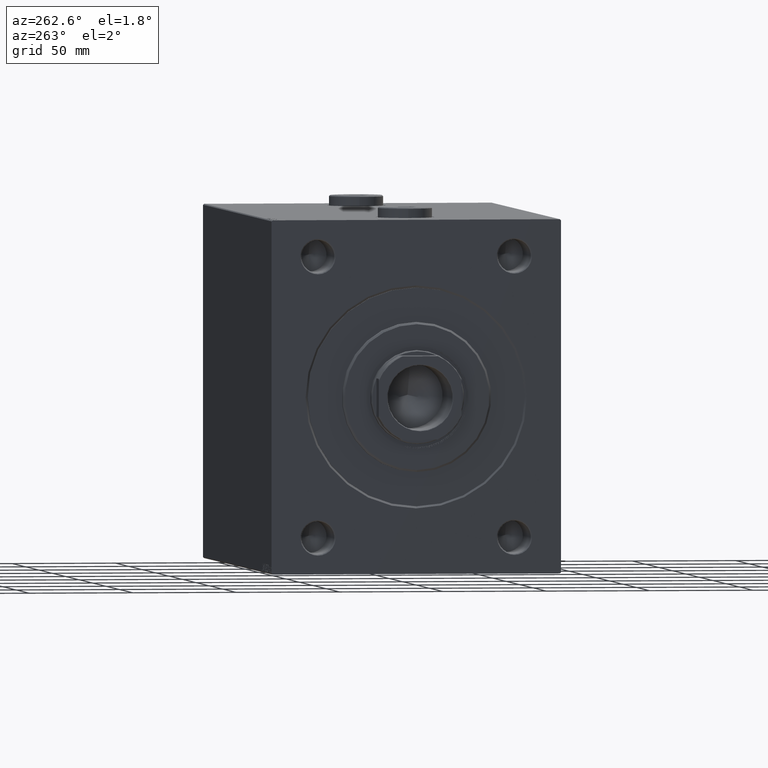
[diagram: clean part render]
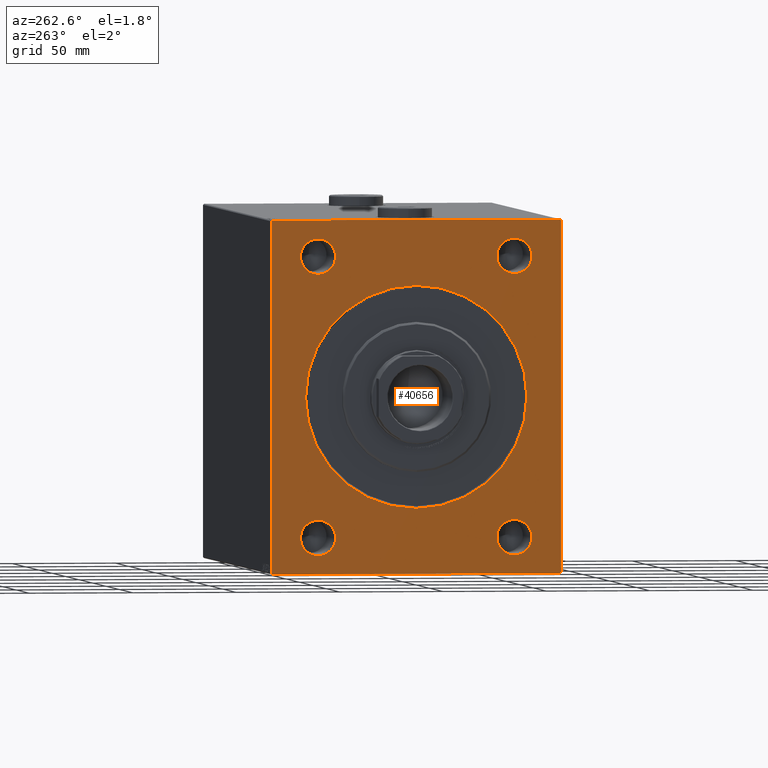
[diagram: same view with one face highlighted and labeled with its STEP entity id]
A machine part, auxiliary view. The second image highlights one B-rep face of the part: STEP entity #40656.
In plain terms, the highlighted planar face has unit normal (1, 0, 0).
Its self-contained STEP definition (entity closure, byte-faithful):
#99 = CARTESIAN_POINT ( 'NONE',  ( 0.000000000000000000, 70.00000000000001421, -85.00000000000000000 ) ) ;
#739 = VECTOR ( 'NONE', #6511, 1000.000000000000000 ) ;
#950 = VERTEX_POINT ( 'NONE', #18345 ) ;
#1317 = DIRECTION ( 'NONE',  ( 1.000000000000000000, 0.000000000000000000, 0.000000000000000000 ) ) ;
#1331 = ORIENTED_EDGE ( 'NONE', *, *, #29895, .T. ) ;
#1514 = LINE ( 'NONE', #37708, #42964 ) ;
#1765 = DIRECTION ( 'NONE',  ( 1.000000000000000000, 0.000000000000000000, 0.000000000000000000 ) ) ;
#2150 = CIRCLE ( 'NONE', #25760, 8.500000000000007105 ) ;
#2181 = CARTESIAN_POINT ( 'NONE',  ( 0.000000000000000000, 47.50000000000000000, 67.49999999999998579 ) ) ;
#2832 = CARTESIAN_POINT ( 'NONE',  ( 0.000000000000000000, -70.00000000000000000, 84.99999999999998579 ) ) ;
#2998 = EDGE_CURVE ( 'NONE', #25461, #5146, #27032, .T. ) ;
#3083 = CARTESIAN_POINT ( 'NONE',  ( 0.000000000000000000, 47.50000000000000000, -67.50000000000001421 ) ) ;
#3112 = ORIENTED_EDGE ( 'NONE', *, *, #18599, .T. ) ;
#3415 = ORIENTED_EDGE ( 'NONE', *, *, #30629, .F. ) ;
#3528 = VERTEX_POINT ( 'NONE', #32573 ) ;
#3539 = CIRCLE ( 'NONE', #29348, 8.500000000000007105 ) ;
#3544 = DIRECTION ( 'NONE',  ( 1.000000000000000000, 0.000000000000000000, 0.000000000000000000 ) ) ;
#4174 = DIRECTION ( 'NONE',  ( 1.000000000000000000, 0.000000000000000000, 0.000000000000000000 ) ) ;
#4617 = DIRECTION ( 'NONE',  ( 0.000000000000000000, 0.000000000000000000, -1.000000000000000000 ) ) ;
#4803 = VECTOR ( 'NONE', #45578, 1000.000000000000000 ) ;
#5146 = VERTEX_POINT ( 'NONE', #34944 ) ;
#5897 = VERTEX_POINT ( 'NONE', #36392 ) ;
#6064 = DIRECTION ( 'NONE',  ( -0.000000000000000000, 0.7071067811865672237, 0.7071067811865279218 ) ) ;
#6511 = DIRECTION ( 'NONE',  ( -0.000000000000000000, 0.7071067811865378028, -0.7071067811865573427 ) ) ;
#6639 = VERTEX_POINT ( 'NONE', #35073 ) ;
#6709 = CIRCLE ( 'NONE', #10387, 8.500000000000007105 ) ;
#7021 = DIRECTION ( 'NONE',  ( 0.000000000000000000, 0.000000000000000000, -1.000000000000000000 ) ) ;
#7188 = FACE_OUTER_BOUND ( 'NONE', #38167, .T. ) ;
#7271 = ORIENTED_EDGE ( 'NONE', *, *, #2998, .T. ) ;
#7397 = EDGE_CURVE ( 'NONE', #25738, #25922, #15706, .T. ) ;
#8823 = AXIS2_PLACEMENT_3D ( 'NONE', #3083, #45144, #7021 ) ;
#9079 = ORIENTED_EDGE ( 'NONE', *, *, #18804, .F. ) ;
#9234 = VECTOR ( 'NONE', #13516, 1000.000000000000000 ) ;
#9499 = DIRECTION ( 'NONE',  ( 0.000000000000000000, 0.000000000000000000, -1.000000000000000000 ) ) ;
#9683 = VERTEX_POINT ( 'NONE', #27426 ) ;
#10320 = DIRECTION ( 'NONE',  ( 1.000000000000000000, 0.000000000000000000, 0.000000000000000000 ) ) ;
#10387 = AXIS2_PLACEMENT_3D ( 'NONE', #2181, #41203, #44687 ) ;
#10404 = PLANE ( 'NONE',  #38257 ) ;
#10623 = CARTESIAN_POINT ( 'NONE',  ( 0.000000000000000000, -47.50000000000000000, -76.00000000000002842 ) ) ;
#10626 = CARTESIAN_POINT ( 'NONE',  ( 0.000000000000000000, 0.000000000000000000, 0.000000000000000000 ) ) ;
#10856 = FACE_BOUND ( 'NONE', #20125, .T. ) ;
#11439 = VECTOR ( 'NONE', #31177, 1000.000000000000114 ) ;
#11834 = ORIENTED_EDGE ( 'NONE', *, *, #33150, .F. ) ;
#11886 = DIRECTION ( 'NONE',  ( 0.000000000000000000, 0.000000000000000000, -1.000000000000000000 ) ) ;
#12529 = EDGE_LOOP ( 'NONE', ( #12882, #29874 ) ) ;
#12882 = ORIENTED_EDGE ( 'NONE', *, *, #32372, .T. ) ;
#13053 = EDGE_CURVE ( 'NONE', #32763, #28189, #20608, .T. ) ;
#13430 = CARTESIAN_POINT ( 'NONE',  ( 0.000000000000000000, 69.49999999999997158, 85.00000000000001421 ) ) ;
#13516 = DIRECTION ( 'NONE',  ( 0.000000000000000000, -1.000000000000000000, -1.982541115402065110E-16 ) ) ;
#13959 = LINE ( 'NONE', #99, #14851 ) ;
#14153 = ORIENTED_EDGE ( 'NONE', *, *, #30836, .T. ) ;
#14349 = EDGE_CURVE ( 'NONE', #3528, #27269, #30984, .T. ) ;
#14658 = VECTOR ( 'NONE', #15032, 999.9999999999998863 ) ;
#14785 = EDGE_LOOP ( 'NONE', ( #17072, #7271 ) ) ;
#14851 = VECTOR ( 'NONE', #17650, 1000.000000000000000 ) ;
#15032 = DIRECTION ( 'NONE',  ( 0.000000000000000000, -0.7071067811865376918, -0.7071067811865574537 ) ) ;
#15139 = CIRCLE ( 'NONE', #35811, 8.500000000000007105 ) ;
#15165 = CARTESIAN_POINT ( 'NONE',  ( 0.000000000000000000, 47.50000000000000000, 58.99999999999998579 ) ) ;
#15640 = CARTESIAN_POINT ( 'NONE',  ( 0.000000000000000000, -47.50000000000000000, -67.50000000000001421 ) ) ;
#15706 = LINE ( 'NONE', #36055, #14658 ) ;
#15707 = VERTEX_POINT ( 'NONE', #28984 ) ;
#15974 = CARTESIAN_POINT ( 'NONE',  ( 0.000000000000000000, -70.00000000000000000, -85.00000000000000000 ) ) ;
#16552 = EDGE_CURVE ( 'NONE', #5146, #25461, #6709, .T. ) ;
#16861 = ORIENTED_EDGE ( 'NONE', *, *, #13053, .T. ) ;
#17072 = ORIENTED_EDGE ( 'NONE', *, *, #16552, .T. ) ;
#17091 = CARTESIAN_POINT ( 'NONE',  ( 0.000000000000000000, -69.49999999999995737, -85.00000000000000000 ) ) ;
#17650 = DIRECTION ( 'NONE',  ( 0.000000000000000000, -8.163404592832031500E-17, 1.000000000000000000 ) ) ;
#18345 = CARTESIAN_POINT ( 'NONE',  ( 0.000000000000000000, 0.000000000000000000, 53.50000000000002842 ) ) ;
#18599 = EDGE_CURVE ( 'NONE', #15707, #5897, #20016, .T. ) ;
#18804 = EDGE_CURVE ( 'NONE', #25738, #27269, #13959, .T. ) ;
#18841 = ORIENTED_EDGE ( 'NONE', *, *, #14349, .T. ) ;
#19673 = CARTESIAN_POINT ( 'NONE',  ( 0.000000000000000000, 0.000000000000000000, 0.000000000000000000 ) ) ;
#19823 = AXIS2_PLACEMENT_3D ( 'NONE', #25235, #3544, #39332 ) ;
#20016 = CIRCLE ( 'NONE', #45100, 8.500000000000007105 ) ;
#20125 = EDGE_LOOP ( 'NONE', ( #26844, #16861 ) ) ;
#20546 = LINE ( 'NONE', #17091, #11439 ) ;
#20608 = CIRCLE ( 'NONE', #8823, 8.500000000000007105 ) ;
#21101 = VECTOR ( 'NONE', #37694, 1000.000000000000000 ) ;
#21148 = AXIS2_PLACEMENT_3D ( 'NONE', #30348, #26652, #11886 ) ;
#21452 = EDGE_CURVE ( 'NONE', #6639, #29971, #1514, .T. ) ;
#21491 = FACE_BOUND ( 'NONE', #33602, .T. ) ;
#22552 = AXIS2_PLACEMENT_3D ( 'NONE', #19673, #41147, #9499 ) ;
#23504 = CIRCLE ( 'NONE', #19823, 8.500000000000007105 ) ;
#23954 = CARTESIAN_POINT ( 'NONE',  ( 0.000000000000000000, 70.00000000000000000, 84.49999999999997158 ) ) ;
#24532 = LINE ( 'NONE', #2832, #4803 ) ;
#24978 = CARTESIAN_POINT ( 'NONE',  ( 0.000000000000000000, 69.50000000000005684, -85.00000000000000000 ) ) ;
#25235 = CARTESIAN_POINT ( 'NONE',  ( 0.000000000000000000, 47.50000000000000000, -67.50000000000001421 ) ) ;
#25317 = ORIENTED_EDGE ( 'NONE', *, *, #33116, .T. ) ;
#25436 = CARTESIAN_POINT ( 'NONE',  ( 0.000000000000000000, -47.50000000000000000, -59.00000000000001421 ) ) ;
#25461 = VERTEX_POINT ( 'NONE', #15165 ) ;
#25738 = VERTEX_POINT ( 'NONE', #45181 ) ;
#25760 = AXIS2_PLACEMENT_3D ( 'NONE', #31489, #41661, #38431 ) ;
#25922 = VERTEX_POINT ( 'NONE', #24978 ) ;
#26064 = CARTESIAN_POINT ( 'NONE',  ( 0.000000000000000000, 0.000000000000000000, 0.000000000000000000 ) ) ;
#26430 = ORIENTED_EDGE ( 'NONE', *, *, #38429, .T. ) ;
#26652 = DIRECTION ( 'NONE',  ( 1.000000000000000000, 0.000000000000000000, 0.000000000000000000 ) ) ;
#26844 = ORIENTED_EDGE ( 'NONE', *, *, #40297, .T. ) ;
#27032 = CIRCLE ( 'NONE', #21148, 8.500000000000007105 ) ;
#27269 = VERTEX_POINT ( 'NONE', #23954 ) ;
#27426 = CARTESIAN_POINT ( 'NONE',  ( 0.000000000000000000, 6.551860375438343048E-15, -53.50000000000002842 ) ) ;
#27548 = EDGE_CURVE ( 'NONE', #3528, #29971, #45188, .T. ) ;
#27839 = VERTEX_POINT ( 'NONE', #41591 ) ;
#28189 = VERTEX_POINT ( 'NONE', #39904 ) ;
#28642 = FACE_BOUND ( 'NONE', #31188, .T. ) ;
#28816 = DIRECTION ( 'NONE',  ( 0.000000000000000000, 0.000000000000000000, -1.000000000000000000 ) ) ;
#28984 = CARTESIAN_POINT ( 'NONE',  ( 0.000000000000000000, -47.50000000000000000, 76.00000000000000000 ) ) ;
#29179 = CARTESIAN_POINT ( 'NONE',  ( 0.000000000000000000, -69.49999999999995737, -85.00000000000000000 ) ) ;
#29348 = AXIS2_PLACEMENT_3D ( 'NONE', #33412, #1765, #44051 ) ;
#29874 = ORIENTED_EDGE ( 'NONE', *, *, #41298, .T. ) ;
#29895 = EDGE_CURVE ( 'NONE', #950, #9683, #32780, .T. ) ;
#29941 = CIRCLE ( 'NONE', #22552, 53.50000000000002842 ) ;
#29971 = VERTEX_POINT ( 'NONE', #34583 ) ;
#30348 = CARTESIAN_POINT ( 'NONE',  ( 0.000000000000000000, 47.50000000000000000, 67.49999999999998579 ) ) ;
#30558 = AXIS2_PLACEMENT_3D ( 'NONE', #26064, #33233, #4617 ) ;
#30629 = EDGE_CURVE ( 'NONE', #6639, #27839, #24532, .T. ) ;
#30836 = EDGE_CURVE ( 'NONE', #35729, #27839, #20546, .T. ) ;
#30984 = LINE ( 'NONE', #13430, #739 ) ;
#31177 = DIRECTION ( 'NONE',  ( -0.000000000000000000, -0.7071067811865376918, 0.7071067811865573427 ) ) ;
#31188 = EDGE_LOOP ( 'NONE', ( #3112, #26430 ) ) ;
#31489 = CARTESIAN_POINT ( 'NONE',  ( 0.000000000000000000, -47.50000000000000000, -67.50000000000001421 ) ) ;
#31662 = FACE_BOUND ( 'NONE', #12529, .T. ) ;
#31805 = DIRECTION ( 'NONE',  ( 0.000000000000000000, 0.000000000000000000, -1.000000000000000000 ) ) ;
#31948 = ORIENTED_EDGE ( 'NONE', *, *, #27548, .F. ) ;
#32372 = EDGE_CURVE ( 'NONE', #36915, #38776, #15139, .T. ) ;
#32573 = CARTESIAN_POINT ( 'NONE',  ( 0.000000000000000000, 69.49999999999997158, 85.00000000000001421 ) ) ;
#32763 = VERTEX_POINT ( 'NONE', #33816 ) ;
#32780 = CIRCLE ( 'NONE', #30558, 53.50000000000002842 ) ;
#33116 = EDGE_CURVE ( 'NONE', #9683, #950, #29941, .T. ) ;
#33150 = EDGE_CURVE ( 'NONE', #35729, #25922, #37017, .T. ) ;
#33233 = DIRECTION ( 'NONE',  ( 1.000000000000000000, 0.000000000000000000, 0.000000000000000000 ) ) ;
#33412 = CARTESIAN_POINT ( 'NONE',  ( 0.000000000000000000, -47.50000000000000000, 67.49999999999998579 ) ) ;
#33602 = EDGE_LOOP ( 'NONE', ( #1331, #25317 ) ) ;
#33816 = CARTESIAN_POINT ( 'NONE',  ( 0.000000000000000000, 47.50000000000000000, -76.00000000000002842 ) ) ;
#34191 = ORIENTED_EDGE ( 'NONE', *, *, #7397, .T. ) ;
#34583 = CARTESIAN_POINT ( 'NONE',  ( 0.000000000000000000, -69.49999999999997158, 84.99999999999998579 ) ) ;
#34944 = CARTESIAN_POINT ( 'NONE',  ( 0.000000000000000000, 47.50000000000000000, 76.00000000000000000 ) ) ;
#35033 = CARTESIAN_POINT ( 'NONE',  ( 0.000000000000000000, -47.50000000000000000, 67.49999999999998579 ) ) ;
#35073 = CARTESIAN_POINT ( 'NONE',  ( 0.000000000000000000, -70.00000000000000000, 84.49999999999998579 ) ) ;
#35729 = VERTEX_POINT ( 'NONE', #29179 ) ;
#35811 = AXIS2_PLACEMENT_3D ( 'NONE', #15640, #1317, #28816 ) ;
#36055 = CARTESIAN_POINT ( 'NONE',  ( 0.000000000000000000, 70.00000000000001421, -84.50000000000002842 ) ) ;
#36392 = CARTESIAN_POINT ( 'NONE',  ( 0.000000000000000000, -47.50000000000000000, 58.99999999999998579 ) ) ;
#36915 = VERTEX_POINT ( 'NONE', #25436 ) ;
#37017 = LINE ( 'NONE', #15974, #21101 ) ;
#37694 = DIRECTION ( 'NONE',  ( 0.000000000000000000, 1.000000000000000000, 0.000000000000000000 ) ) ;
#37708 = CARTESIAN_POINT ( 'NONE',  ( 0.000000000000000000, -70.00000000000000000, 84.49999999999998579 ) ) ;
#38167 = EDGE_LOOP ( 'NONE', ( #3415, #39863, #31948, #18841, #9079, #34191, #11834, #14153 ) ) ;
#38257 = AXIS2_PLACEMENT_3D ( 'NONE', #10626, #4174, #39053 ) ;
#38429 = EDGE_CURVE ( 'NONE', #5897, #15707, #3539, .T. ) ;
#38431 = DIRECTION ( 'NONE',  ( 0.000000000000000000, 0.000000000000000000, -1.000000000000000000 ) ) ;
#38776 = VERTEX_POINT ( 'NONE', #10623 ) ;
#39053 = DIRECTION ( 'NONE',  ( 0.000000000000000000, 0.000000000000000000, -1.000000000000000000 ) ) ;
#39332 = DIRECTION ( 'NONE',  ( 0.000000000000000000, 0.000000000000000000, -1.000000000000000000 ) ) ;
#39863 = ORIENTED_EDGE ( 'NONE', *, *, #21452, .T. ) ;
#39904 = CARTESIAN_POINT ( 'NONE',  ( 0.000000000000000000, 47.50000000000000000, -59.00000000000001421 ) ) ;
#40297 = EDGE_CURVE ( 'NONE', #28189, #32763, #23504, .T. ) ;
#40656 = ADVANCED_FACE ( 'NONE', ( #21491, #31662, #28642, #42523, #10856, #7188 ), #10404, .F. ) ;
#41147 = DIRECTION ( 'NONE',  ( 1.000000000000000000, 0.000000000000000000, 0.000000000000000000 ) ) ;
#41203 = DIRECTION ( 'NONE',  ( 1.000000000000000000, 0.000000000000000000, 0.000000000000000000 ) ) ;
#41298 = EDGE_CURVE ( 'NONE', #38776, #36915, #2150, .T. ) ;
#41591 = CARTESIAN_POINT ( 'NONE',  ( 0.000000000000000000, -70.00000000000000000, -84.49999999999994316 ) ) ;
#41661 = DIRECTION ( 'NONE',  ( 1.000000000000000000, 0.000000000000000000, 0.000000000000000000 ) ) ;
#41706 = CARTESIAN_POINT ( 'NONE',  ( 0.000000000000000000, 70.00000000000000000, 85.00000000000001421 ) ) ;
#42523 = FACE_BOUND ( 'NONE', #14785, .T. ) ;
#42964 = VECTOR ( 'NONE', #6064, 1000.000000000000000 ) ;
#44051 = DIRECTION ( 'NONE',  ( 0.000000000000000000, 0.000000000000000000, -1.000000000000000000 ) ) ;
#44687 = DIRECTION ( 'NONE',  ( 0.000000000000000000, 0.000000000000000000, -1.000000000000000000 ) ) ;
#45100 = AXIS2_PLACEMENT_3D ( 'NONE', #35033, #10320, #31805 ) ;
#45144 = DIRECTION ( 'NONE',  ( 1.000000000000000000, 0.000000000000000000, 0.000000000000000000 ) ) ;
#45181 = CARTESIAN_POINT ( 'NONE',  ( 0.000000000000000000, 70.00000000000001421, -84.50000000000002842 ) ) ;
#45188 = LINE ( 'NONE', #41706, #9234 ) ;
#45578 = DIRECTION ( 'NONE',  ( 0.000000000000000000, 0.000000000000000000, -1.000000000000000000 ) ) ;